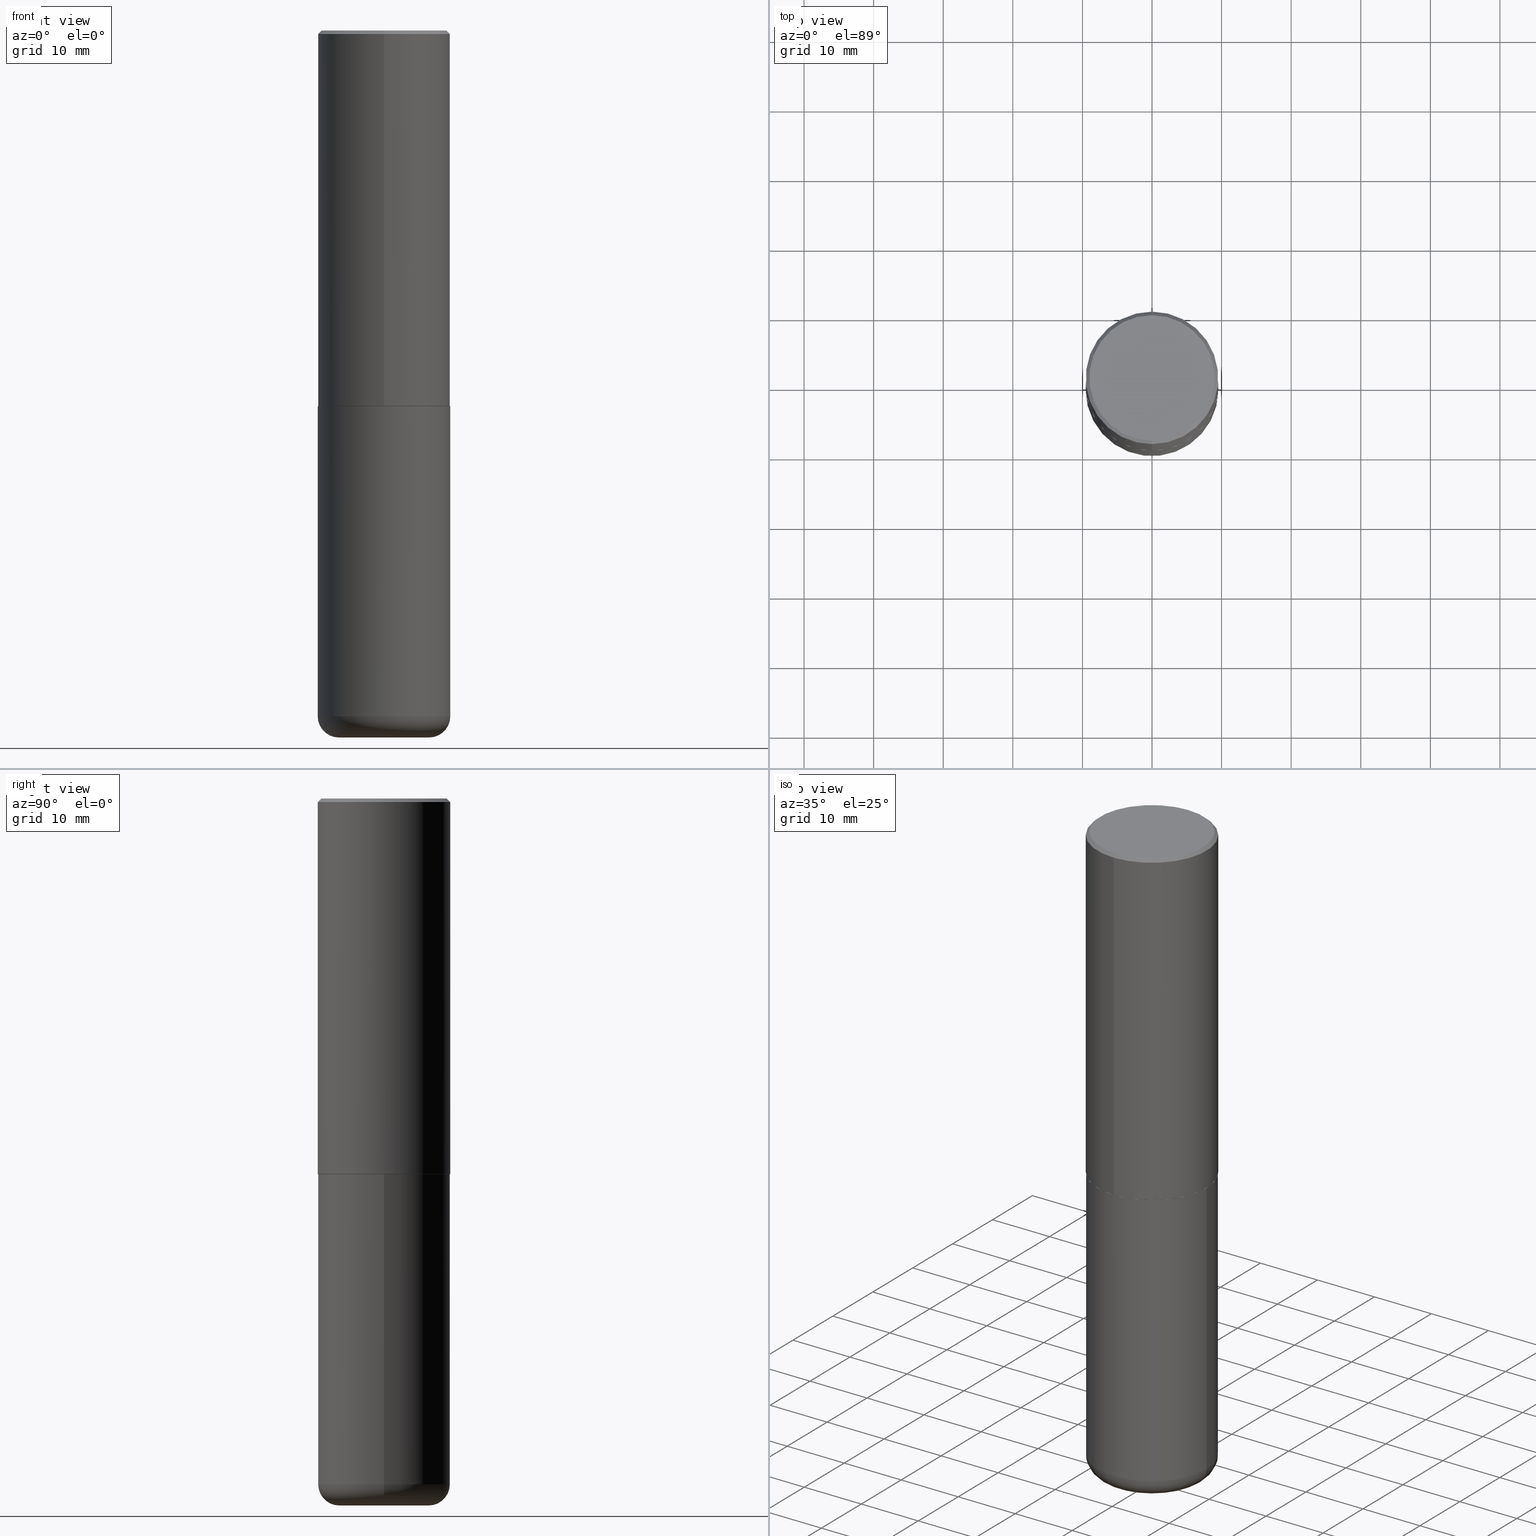
[diagram: canonical four-view strip — front | top / right | iso, engineering-drawing reading convention]
A machine part, canonical four-view strip (front | top / right | iso — engineering-drawing reading convention). The complete STEP part file that produces these views, byte-faithful:
ISO-10303-21;
HEADER;
FILE_DESCRIPTION (( 'STEP AP203' ),
    '1' );
FILE_NAME ('77256.STEP',
    '2024-03-06T16:41:11',
    ( '' ),
    ( '' ),
    'SwSTEP 2.0',
    'SolidWorks 2023',
    '' );
FILE_SCHEMA (( 'CONFIG_CONTROL_DESIGN' ));
ENDSEC;

DATA;
#1 = PLANE ( 'NONE',  #64 ) ;
#2 = EDGE_CURVE ( 'NONE', #69, #9, #322, .T. ) ;
#3 = EDGE_CURVE ( 'NONE', #370, #16, #353, .T. ) ;
#4 = PERSON_AND_ORGANIZATION_ROLE ( 'design_supplier' ) ;
#5 = LINE ( 'NONE', #82, #237 ) ;
#6 = CONICAL_SURFACE ( 'NONE', #17, 0.3739999999999999991, 0.7853981633975507526 ) ;
#7 = VECTOR ( 'NONE', #167, 39.37007874015748143 ) ;
#8 = CARTESIAN_POINT ( 'NONE',  ( 9.781875224740547508E-29, -1.396592535537258391E-14, -4.000000000000000888 ) ) ;
#9 = VERTEX_POINT ( 'NONE', #118 ) ;
#10 = ORIENTED_EDGE ( 'NONE', *, *, #218, .T. ) ;
#11 = ADVANCED_FACE ( 'NONE', ( #255 ), #6, .T. ) ;
#12 = ORIENTED_EDGE ( 'NONE', *, *, #378, .F. ) ;
#13 = AXIS2_PLACEMENT_3D ( 'NONE', #289, #185, #325 ) ;
#14 = ORIENTED_EDGE ( 'NONE', *, *, #178, .T. ) ;
#15 = CC_DESIGN_PERSON_AND_ORGANIZATION_ASSIGNMENT ( #311, #4, ( #158 ) ) ;
#16 = VERTEX_POINT ( 'NONE', #89 ) ;
#17 = AXIS2_PLACEMENT_3D ( 'NONE', #88, #214, #256 ) ;
#18 = AXIS2_PLACEMENT_3D ( 'NONE', #380, #58, #179 ) ;
#19 = CARTESIAN_POINT ( 'NONE',  ( 4.889199683026055945E-31, -6.985451491424065481E-17, -0.02000000000000008715 ) ) ;
#20 = ADVANCED_FACE ( 'NONE', ( #216 ), #236, .T. ) ;
#21 = APPROVAL_DATE_TIME ( #108, #27 ) ;
#22 = DIRECTION ( 'NONE',  ( -2.444599841513017620E-29, 3.492725745712017802E-15, 1.000000000000000000 ) ) ;
#23 = DIRECTION ( 'NONE',  ( -2.444599841513017620E-29, 3.492725745712017802E-15, 1.000000000000000000 ) ) ;
#24 = LOCAL_TIME ( 11, 41, 11.00000000000000000, #328 ) ;
#25 = ADVANCED_FACE ( 'NONE', ( #195 ), #274, .T. ) ;
#26 = FACE_OUTER_BOUND ( 'NONE', #112, .T. ) ;
#27 = APPROVAL ( #48, 'UNSPECIFIED' ) ;
#28 = LINE ( 'NONE', #147, #78 ) ;
#29 = DIRECTION ( 'NONE',  ( 2.438088387897960049E-29, -3.491481338843145188E-15, -1.000000000000000000 ) ) ;
#30 = APPROVAL_ROLE ( '' ) ;
#31 = CARTESIAN_POINT ( 'NONE',  ( 5.194774663215162724E-29, -7.422042209638035708E-15, -2.125000000000000000 ) ) ;
#32 = CONICAL_SURFACE ( 'NONE', #61, 0.3750000000000001110, 0.7853981633974477239 ) ;
#33 = ORGANIZATION ( 'UNSPECIFIED', 'UNSPECIFIED', '' ) ;
#34 = EDGE_CURVE ( 'NONE', #102, #16, #123, .T. ) ;
#35 = DIRECTION ( 'NONE',  ( -6.982962677686266711E-15, -1.000000000000000000, 3.492725745712018196E-15 ) ) ;
#36 = EDGE_CURVE ( 'NONE', #95, #150, #116, .T. ) ;
#37 = ORIENTED_EDGE ( 'NONE', *, *, #87, .F. ) ;
#38 = CC_DESIGN_PERSON_AND_ORGANIZATION_ASSIGNMENT ( #335, #171, ( #158 ) ) ;
#39 = ORIENTED_EDGE ( 'NONE', *, *, #341, .F. ) ;
#40 = ADVANCED_BREP_SHAPE_REPRESENTATION ( '77256', ( #81, #215, #208 ), #247 ) ;
#41 = ORIENTED_EDGE ( 'NONE', *, *, #135, .T. ) ;
#42 = AXIS2_PLACEMENT_3D ( 'NONE', #68, #324, #361 ) ;
#43 = AXIS2_PLACEMENT_3D ( 'NONE', #114, #379, #253 ) ;
#44 = ORIENTED_EDGE ( 'NONE', *, *, #268, .T. ) ;
#45 =( NAMED_UNIT ( * ) PLANE_ANGLE_UNIT ( ) SI_UNIT ( $, .RADIAN. ) );
#46 = ORIENTED_EDGE ( 'NONE', *, *, #2, .T. ) ;
#47 = CALENDAR_DATE ( 2024, 6, 3 ) ;
#48 = APPROVAL_STATUS ( 'not_yet_approved' ) ;
#49 = DIRECTION ( 'NONE',  ( -6.982962677686266711E-15, -1.000000000000000000, 3.491481338843145583E-15 ) ) ;
#50 = CIRCLE ( 'NONE', #390, 0.3750000000000001110 ) ;
#51 = AXIS2_PLACEMENT_3D ( 'NONE', #408, #282, #250 ) ;
#52 = CARTESIAN_POINT ( 'NONE',  ( 2.664535259100376880E-15, 0.3750000000000002220, -1.309772154642007612E-15 ) ) ;
#53 = DIRECTION ( 'NONE',  ( 1.000000000000000000, -6.982962677686265922E-15, 4.876176775795935793E-29 ) ) ;
#54 = DIRECTION ( 'NONE',  ( -2.444599841513017620E-29, 3.492725745712018196E-15, 1.000000000000000000 ) ) ;
#55 = DIRECTION ( 'NONE',  ( -2.444599841513017620E-29, 3.492725745712017802E-15, 1.000000000000000000 ) ) ;
#56 = CIRCLE ( 'NONE', #350, 0.3750000000000001110 ) ;
#57 = APPROVAL_PERSON_ORGANIZATION ( #368, #127, #30 ) ;
#58 = DIRECTION ( 'NONE',  ( -2.444599841513016780E-29, 3.492725745712018196E-15, 1.000000000000000000 ) ) ;
#59 = CARTESIAN_POINT ( 'NONE',  ( 9.488418967998330085E-29, -1.354694759471140570E-14, -3.880000000000000338 ) ) ;
#60 = LINE ( 'NONE', #212, #272 ) ;
#61 = AXIS2_PLACEMENT_3D ( 'NONE', #77, #204, #142 ) ;
#62 = CIRCLE ( 'NONE', #72, 0.3739999999999999991 ) ;
#63 = PERSON_AND_ORGANIZATION ( #290, #33 ) ;
#64 = AXIS2_PLACEMENT_3D ( 'NONE', #410, #90, #180 ) ;
#65 = VERTEX_POINT ( 'NONE', #109 ) ;
#66 = APPROVAL_ROLE ( '' ) ;
#67 = ORIENTED_EDGE ( 'NONE', *, *, #70, .T. ) ;
#68 = CARTESIAN_POINT ( 'NONE',  ( 4.889199683026055945E-31, -6.985451491424065481E-17, -0.02000000000000008715 ) ) ;
#69 = VERTEX_POINT ( 'NONE', #139 ) ;
#70 = EDGE_CURVE ( 'NONE', #302, #362, #56, .T. ) ;
#71 = EDGE_LOOP ( 'NONE', ( #243, #46, #330, #300 ) ) ;
#72 = AXIS2_PLACEMENT_3D ( 'NONE', #31, #346, #213 ) ;
#73 = ORIENTED_EDGE ( 'NONE', *, *, #173, .T. ) ;
#74 = DIRECTION ( 'NONE',  ( -6.982962677686266711E-15, -1.000000000000000000, 3.642463991552348591E-15 ) ) ;
#75 = EDGE_CURVE ( 'NONE', #362, #302, #50, .T. ) ;
#76 = DIRECTION ( 'NONE',  ( 1.000000000000000000, -6.982962677686265922E-15, 4.876176775795935793E-29 ) ) ;
#77 = CARTESIAN_POINT ( 'NONE',  ( 4.889199683026055945E-31, -6.985451491424065481E-17, -0.02000000000000008715 ) ) ;
#78 = VECTOR ( 'NONE', #115, 39.37007874015748143 ) ;
#79 = CIRCLE ( 'NONE', #111, 0.2550000000000000044 ) ;
#80 = DIRECTION ( 'NONE',  ( -6.982962677686265922E-15, -1.000000000000000000, 3.492725745712017407E-15 ) ) ;
#81 = MANIFOLD_SOLID_BREP ( 'Body-Move/Copy2[1]', #206 ) ;
#82 = CARTESIAN_POINT ( 'NONE',  ( -2.572686749164324336E-15, -0.3750000000000001665, -0.01999999999999877570 ) ) ;
#83 = APPROVAL ( #121, 'UNSPECIFIED' ) ;
#84 = CYLINDRICAL_SURFACE ( 'NONE', #226, 0.3750000000000002220 ) ;
#85 = AXIS2_PLACEMENT_3D ( 'NONE', #403, #244, #207 ) ;
#86 = DIRECTION ( 'NONE',  ( -2.445468806185136597E-29, 3.491481338843145583E-15, 1.000000000000000000 ) ) ;
#87 = EDGE_CURVE ( 'NONE', #150, #362, #409, .T. ) ;
#88 = CARTESIAN_POINT ( 'NONE',  ( 5.194774663215162724E-29, -7.422042209638035708E-15, -2.125000000000000000 ) ) ;
#89 = CARTESIAN_POINT ( 'NONE',  ( -0.3750000000000000555, -7.818637460776168963E-15, -2.125000000000000000 ) ) ;
#90 = DIRECTION ( 'NONE',  ( 2.438088387897960049E-29, -3.491481338843145188E-15, -1.000000000000000000 ) ) ;
#91 = CC_DESIGN_APPROVAL ( #83, ( #155 ) ) ;
#92 = ORIENTED_EDGE ( 'NONE', *, *, #3, .T. ) ;
#93 = COORDINATED_UNIVERSAL_TIME_OFFSET ( 5, 0, .BEHIND. ) ;
#94 = CC_DESIGN_PERSON_AND_ORGANIZATION_ASSIGNMENT ( #298, #262, ( #155 ) ) ;
#95 = VERTEX_POINT ( 'NONE', #369 ) ;
#96 = ADVANCED_FACE ( 'NONE', ( #371 ), #32, .T. ) ;
#97 = VERTEX_POINT ( 'NONE', #404 ) ;
#98 = DATE_TIME_ROLE ( 'classification_date' ) ;
#99 = ORIENTED_EDGE ( 'NONE', *, *, #280, .F. ) ;
#100 = DIRECTION ( 'NONE',  ( -6.982962677686265922E-15, -1.000000000000000000, 3.492725745712017407E-15 ) ) ;
#101 = PLANE ( 'NONE',  #383 ) ;
#102 = VERTEX_POINT ( 'NONE', #174 ) ;
#103 = COORDINATED_UNIVERSAL_TIME_OFFSET ( 5, 0, .BEHIND. ) ;
#104 = APPROVAL_PERSON_ORGANIZATION ( #388, #83, #66 ) ;
#105 = EDGE_CURVE ( 'NONE', #69, #370, #395, .T. ) ;
#106 = APPROVAL_ROLE ( '' ) ;
#107 = DIRECTION ( 'NONE',  ( -2.445468806185136597E-29, 3.491481338843145583E-15, 1.000000000000000000 ) ) ;
#108 = DATE_AND_TIME ( #233, #24 ) ;
#109 = CARTESIAN_POINT ( 'NONE',  ( 2.548781377355487507E-15, 0.3549999999999999822, -1.175448187937810043E-15 ) ) ;
#110 = EDGE_CURVE ( 'NONE', #97, #102, #28, .T. ) ;
#111 = AXIS2_PLACEMENT_3D ( 'NONE', #385, #86, #251 ) ;
#112 = EDGE_LOOP ( 'NONE', ( #393, #394 ) ) ;
#113 = PLANE ( 'NONE',  #309 ) ;
#114 = CARTESIAN_POINT ( 'NONE',  ( 5.194774663215162724E-29, -7.422042209638035708E-15, -2.125000000000000000 ) ) ;
#115 = DIRECTION ( 'NONE',  ( -2.445468806185136877E-29, 3.491481338843145188E-15, 1.000000000000000000 ) ) ;
#116 = CIRCLE ( 'NONE', #355, 0.3750000000000002776 ) ;
#117 = DIRECTION ( 'NONE',  ( 7.105427357601001859E-15, 1.000000000000000000, -3.491481338843145583E-15 ) ) ;
#118 = CARTESIAN_POINT ( 'NONE',  ( 0.2550000000000000044, -1.574658083818258381E-14, -4.000000000000000888 ) ) ;
#119 = FACE_OUTER_BOUND ( 'NONE', #391, .T. ) ;
#120 = EDGE_LOOP ( 'NONE', ( #194, #129 ) ) ;
#121 = APPROVAL_STATUS ( 'not_yet_approved' ) ;
#122 = EDGE_LOOP ( 'NONE', ( #232, #257 ) ) ;
#123 = CIRCLE ( 'NONE', #145, 0.3750000000000000555 ) ;
#124 = SECURITY_CLASSIFICATION ( '', '', #263 ) ;
#125 = ORIENTED_EDGE ( 'NONE', *, *, #352, .T. ) ;
#126 = LENGTH_MEASURE_WITH_UNIT ( LENGTH_MEASURE( 0.02539999999999999897 ), #363 );
#127 = APPROVAL ( #276, 'UNSPECIFIED' ) ;
#128 = EDGE_LOOP ( 'NONE', ( #191, #163, #360, #365 ) ) ;
#129 = ORIENTED_EDGE ( 'NONE', *, *, #173, .F. ) ;
#130 = ADVANCED_FACE ( 'NONE', ( #119 ), #84, .T. ) ;
#131 = CIRCLE ( 'NONE', #323, 0.1200000000000002176 ) ;
#132 = VERTEX_POINT ( 'NONE', #254 ) ;
#133 = ORIENTED_EDGE ( 'NONE', *, *, #347, .T. ) ;
#134 = FACE_OUTER_BOUND ( 'NONE', #122, .T. ) ;
#135 = EDGE_CURVE ( 'NONE', #9, #69, #79, .T. ) ;
#136 = ORIENTED_EDGE ( 'NONE', *, *, #70, .F. ) ;
#137 = AXIS2_PLACEMENT_3D ( 'NONE', #418, #348, #320 ) ;
#138 = DIRECTION ( 'NONE',  ( 0.000000000000000000, 0.000000000000000000, 1.000000000000000000 ) ) ;
#139 = CARTESIAN_POINT ( 'NONE',  ( -0.2550000000000000044, -1.151822685739767881E-14, -4.000000000000000888 ) ) ;
#140 = DIRECTION ( 'NONE',  ( 2.444599841513016780E-29, -3.492725745712018196E-15, -1.000000000000000000 ) ) ;
#141 = CARTESIAN_POINT ( 'NONE',  ( -0.3750000000000001110, -1.088241233561102684E-14, -3.880000000000000338 ) ) ;
#142 = DIRECTION ( 'NONE',  ( 6.982962677686265922E-15, 1.000000000000000000, -3.494488891895535640E-15 ) ) ;
#143 = PERSON_AND_ORGANIZATION ( #290, #33 ) ;
#144 = EDGE_CURVE ( 'NONE', #132, #160, #62, .T. ) ;
#145 = AXIS2_PLACEMENT_3D ( 'NONE', #374, #246, #343 ) ;
#146 = DIRECTION ( 'NONE',  ( -6.982962677686265922E-15, -1.000000000000000000, 3.494488891895535640E-15 ) ) ;
#147 = CARTESIAN_POINT ( 'NONE',  ( 0.3750000000000000555, -2.618611004132350016E-15, 1.828566290923476203E-29 ) ) ;
#148 = EDGE_LOOP ( 'NONE', ( #225, #73, #261, #342 ) ) ;
#149 = CARTESIAN_POINT ( 'NONE',  ( 0.000000000000000000, 0.000000000000000000, 0.000000000000000000 ) ) ;
#150 = VERTEX_POINT ( 'NONE', #153 ) ;
#151 = DIRECTION ( 'NONE',  ( -1.000000000000000000, 6.982962677686265922E-15, -4.876176775795935793E-29 ) ) ;
#152 = PRODUCT_RELATED_PRODUCT_CATEGORY ( 'detail', '', ( #245 ) ) ;
#153 = CARTESIAN_POINT ( 'NONE',  ( 2.664535259100402913E-15, 0.3749999999999928391, -2.124000000000000998 ) ) ;
#154 = VECTOR ( 'NONE', #54, 39.37007874015748143 ) ;
#155 = PRODUCT_DEFINITION ( 'UNKNOWN', '', #158, #228 ) ;
#156 = CARTESIAN_POINT ( 'NONE',  ( 2.657429831742826359E-15, 0.3739999999999925606, -2.125000000000001332 ) ) ;
#157 = EDGE_LOOP ( 'NONE', ( #10, #92, #199, #327 ) ) ;
#158 = PRODUCT_DEFINITION_FORMATION_WITH_SPECIFIED_SOURCE ( 'ANY', '', #245, .NOT_KNOWN. ) ;
#159 = ORIENTED_EDGE ( 'NONE', *, *, #87, .T. ) ;
#160 = VERTEX_POINT ( 'NONE', #182 ) ;
#161 = DATE_TIME_ROLE ( 'creation_date' ) ;
#162 = CIRCLE ( 'NONE', #85, 0.3750000000000000555 ) ;
#163 = ORIENTED_EDGE ( 'NONE', *, *, #205, .T. ) ;
#164 = ORIENTED_EDGE ( 'NONE', *, *, #411, .T. ) ;
#165 = FACE_OUTER_BOUND ( 'NONE', #128, .T. ) ;
#166 = APPROVAL_DATE_TIME ( #286, #127 ) ;
#167 = DIRECTION ( 'NONE',  ( 5.024295867788576727E-15, 0.7071067811866224018, 0.7071067811864726327 ) ) ;
#168 = LINE ( 'NONE', #375, #154 ) ;
#169 = CIRCLE ( 'NONE', #137, 0.3739999999999999991 ) ;
#170 = MECHANICAL_CONTEXT ( 'NONE', #230, 'mechanical' ) ;
#171 = PERSON_AND_ORGANIZATION_ROLE ( 'creator' ) ;
#172 = DIRECTION ( 'NONE',  ( -2.445468806185136597E-29, 3.491481338843145583E-15, 1.000000000000000000 ) ) ;
#173 = EDGE_CURVE ( 'NONE', #160, #132, #169, .T. ) ;
#174 = CARTESIAN_POINT ( 'NONE',  ( 0.3750000000000000555, -1.003800884917403364E-14, -2.125000000000000000 ) ) ;
#175 = DIMENSIONAL_EXPONENTS ( 1.000000000000000000, 0.000000000000000000, 0.000000000000000000, 0.000000000000000000, 0.000000000000000000, 0.000000000000000000, 0.000000000000000000 ) ;
#176 = LOCAL_TIME ( 11, 41, 11.00000000000000000, #93 ) ;
#177 = DIRECTION ( 'NONE',  ( -4.851104656540961119E-15, -0.7071067811865495711, -0.7071067811865454633 ) ) ;
#178 = EDGE_CURVE ( 'NONE', #65, #362, #60, .T. ) ;
#179 = DIRECTION ( 'NONE',  ( -6.982962677686265922E-15, -1.000000000000000000, 3.492725745712018196E-15 ) ) ;
#180 = DIRECTION ( 'NONE',  ( -1.000000000000000000, 6.982962677686265922E-15, -4.876176775795935793E-29 ) ) ;
#181 = CC_DESIGN_DATE_AND_TIME_ASSIGNMENT ( #222, #161, ( #155 ) ) ;
#182 = CARTESIAN_POINT ( 'NONE',  ( 2.660982545421628047E-15, 0.3739999999999925606, -2.125000000000001332 ) ) ;
#183 = AXIS2_PLACEMENT_3D ( 'NONE', #209, #406, #279 ) ;
#184 = ADVANCED_FACE ( 'NONE', ( #412 ), #288, .F. ) ;
#185 = DIRECTION ( 'NONE',  ( -2.445468806185136597E-29, 3.491481338843145583E-15, 1.000000000000000000 ) ) ;
#186 = PERSON_AND_ORGANIZATION_ROLE ( 'classification_officer' ) ;
#187 = AXIS2_PLACEMENT_3D ( 'NONE', #241, #336, #80 ) ;
#188 = CALENDAR_DATE ( 2024, 6, 3 ) ;
#189 = ORIENTED_EDGE ( 'NONE', *, *, #75, .F. ) ;
#190 = CYLINDRICAL_SURFACE ( 'NONE', #252, 0.3750000000000002220 ) ;
#191 = ORIENTED_EDGE ( 'NONE', *, *, #3, .F. ) ;
#192 = CC_DESIGN_PERSON_AND_ORGANIZATION_ASSIGNMENT ( #143, #248, ( #245 ) ) ;
#193 = SHAPE_DEFINITION_REPRESENTATION ( #203, #40 ) ;
#194 = ORIENTED_EDGE ( 'NONE', *, *, #144, .F. ) ;
#195 = FACE_OUTER_BOUND ( 'NONE', #157, .T. ) ;
#196 = CARTESIAN_POINT ( 'NONE',  ( -2.572686749164324336E-15, -0.3750000000000001665, -0.01999999999999877570 ) ) ;
#197 = LOCAL_TIME ( 11, 41, 11.00000000000000000, #103 ) ;
#198 = EDGE_LOOP ( 'NONE', ( #258, #164 ) ) ;
#199 = ORIENTED_EDGE ( 'NONE', *, *, #34, .F. ) ;
#200 = COORDINATED_UNIVERSAL_TIME_OFFSET ( 5, 0, .BEHIND. ) ;
#201 = DIRECTION ( 'NONE',  ( -6.982962677686265922E-15, -1.000000000000000000, 3.494488891895535640E-15 ) ) ;
#202 = APPLICATION_PROTOCOL_DEFINITION ( 'international standard', 'config_control_design', 1994, #230 ) ;
#203 = PRODUCT_DEFINITION_SHAPE ( 'NONE', 'NONE',  #155 ) ;
#204 = DIRECTION ( 'NONE',  ( 2.444599841513017620E-29, -3.492725745712017802E-15, -1.000000000000000000 ) ) ;
#205 = EDGE_CURVE ( 'NONE', #370, #97, #329, .T. ) ;
#206 = CLOSED_SHELL ( 'NONE', ( #25, #223, #316, #210, #357, #331 ) ) ;
#207 = DIRECTION ( 'NONE',  ( 1.000000000000000000, -6.982962677686266711E-15, 0.000000000000000000 ) ) ;
#208 = AXIS2_PLACEMENT_3D ( 'NONE', #304, #138, #314 ) ;
#209 = CARTESIAN_POINT ( 'NONE',  ( 5.192330063373648592E-29, -7.418549483892325607E-15, -2.123999999999999666 ) ) ;
#210 = ADVANCED_FACE ( 'NONE', ( #165 ), #273, .T. ) ;
#211 = CC_DESIGN_SECURITY_CLASSIFICATION ( #124, ( #158 ) ) ;
#212 = CARTESIAN_POINT ( 'NONE',  ( 2.618611004132351200E-15, 0.3750000000000000555, -0.02000000000000139513 ) ) ;
#213 = DIRECTION ( 'NONE',  ( -6.982962677686266711E-15, -1.000000000000000000, 3.652203200085913145E-15 ) ) ;
#214 = DIRECTION ( 'NONE',  ( -2.444599841513017620E-29, 3.492725745712017802E-15, 1.000000000000000000 ) ) ;
#215 = MANIFOLD_SOLID_BREP ( 'Body-Move/Copy2[2]', #344 ) ;
#216 = FACE_OUTER_BOUND ( 'NONE', #354, .T. ) ;
#217 = DIRECTION ( 'NONE',  ( -2.445468806185136597E-29, 3.491481338843145583E-15, 1.000000000000000000 ) ) ;
#218 = EDGE_CURVE ( 'NONE', #97, #370, #162, .T. ) ;
#219 = CIRCLE ( 'NONE', #259, 0.3549999999999999822 ) ;
#220 = ORIENTED_EDGE ( 'NONE', *, *, #36, .F. ) ;
#221 = DIRECTION ( 'NONE',  ( 1.000000000000000000, -6.982962677686267499E-15, 0.000000000000000000 ) ) ;
#222 = DATE_AND_TIME ( #366, #197 ) ;
#223 = ADVANCED_FACE ( 'NONE', ( #339 ), #301, .T. ) ;
#224 = CARTESIAN_POINT ( 'NONE',  ( -2.611628041454611937E-15, -0.3740000000000074931, -2.124999999999998668 ) ) ;
#225 = ORIENTED_EDGE ( 'NONE', *, *, #268, .F. ) ;
#226 = AXIS2_PLACEMENT_3D ( 'NONE', #149, #285, #414 ) ;
#227 = ADVANCED_FACE ( 'NONE', ( #313 ), #190, .T. ) ;
#228 = DESIGN_CONTEXT ( 'detailed design', #381, 'design' ) ;
#229 = EDGE_LOOP ( 'NONE', ( #332, #44, #220, #39 ) ) ;
#230 = APPLICATION_CONTEXT ( 'configuration controlled 3d designs of mechanical parts and assemblies' ) ;
#231 = CARTESIAN_POINT ( 'NONE',  ( 0.2550000000000000044, -1.532760307752140402E-14, -3.880000000000000338 ) ) ;
#232 = ORIENTED_EDGE ( 'NONE', *, *, #287, .T. ) ;
#233 = CALENDAR_DATE ( 2024, 6, 3 ) ;
#234 = ORIENTED_EDGE ( 'NONE', *, *, #275, .F. ) ;
#235 = DIRECTION ( 'NONE',  ( 1.000000000000000000, -6.982962677686266711E-15, 0.000000000000000000 ) ) ;
#236 = CONICAL_SURFACE ( 'NONE', #42, 0.3750000000000001110, 0.7853981633974477239 ) ;
#237 = VECTOR ( 'NONE', #177, 39.37007874015748143 ) ;
#238 = ORIENTED_EDGE ( 'NONE', *, *, #75, .T. ) ;
#239 = DIRECTION ( 'NONE',  ( -2.445468806185136597E-29, 3.491481338843145583E-15, 1.000000000000000000 ) ) ;
#240 = CARTESIAN_POINT ( 'NONE',  ( 4.889199683026055945E-31, -6.985451491424065481E-17, -0.02000000000000008715 ) ) ;
#241 = CARTESIAN_POINT ( 'NONE',  ( -1.576020116281570290E-45, 2.251741140787182714E-31, 6.446945178995578068E-17 ) ) ;
#242 =( NAMED_UNIT ( * ) SI_UNIT ( $, .STERADIAN. ) SOLID_ANGLE_UNIT ( ) );
#243 = ORIENTED_EDGE ( 'NONE', *, *, #105, .F. ) ;
#244 = DIRECTION ( 'NONE',  ( -2.445468806185136597E-29, 3.491481338843145583E-15, 1.000000000000000000 ) ) ;
#245 = PRODUCT ( '77256', '77256', '', ( #170 ) ) ;
#246 = DIRECTION ( 'NONE',  ( -2.445468806185136597E-29, 3.491481338843145583E-15, 1.000000000000000000 ) ) ;
#247 =( GEOMETRIC_REPRESENTATION_CONTEXT ( 3 ) GLOBAL_UNCERTAINTY_ASSIGNED_CONTEXT ( ( #326 ) ) GLOBAL_UNIT_ASSIGNED_CONTEXT ( ( #358, #45, #242 ) ) REPRESENTATION_CONTEXT ( 'NONE', 'WORKASPACE' ) );
#248 = PERSON_AND_ORGANIZATION_ROLE ( 'design_owner' ) ;
#249 = COORDINATED_UNIVERSAL_TIME_OFFSET ( 5, 0, .BEHIND. ) ;
#250 = DIRECTION ( 'NONE',  ( 1.000000000000000000, -6.982962677686263555E-15, 4.883557194083111219E-29 ) ) ;
#251 = DIRECTION ( 'NONE',  ( 1.000000000000000000, -6.982962677686267499E-15, 0.000000000000000000 ) ) ;
#252 = AXIS2_PLACEMENT_3D ( 'NONE', #299, #306, #35 ) ;
#253 = DIRECTION ( 'NONE',  ( -6.982962677686266711E-15, -1.000000000000000000, 3.652203200085913145E-15 ) ) ;
#254 = CARTESIAN_POINT ( 'NONE',  ( -2.611628041454611937E-15, -0.3740000000000074931, -2.124999999999998668 ) ) ;
#255 = FACE_OUTER_BOUND ( 'NONE', #148, .T. ) ;
#256 = DIRECTION ( 'NONE',  ( -6.982962677686266711E-15, -1.000000000000000000, 3.652203200085913145E-15 ) ) ;
#257 = ORIENTED_EDGE ( 'NONE', *, *, #378, .T. ) ;
#258 = ORIENTED_EDGE ( 'NONE', *, *, #34, .T. ) ;
#259 = AXIS2_PLACEMENT_3D ( 'NONE', #405, #22, #100 ) ;
#260 = DIRECTION ( 'NONE',  ( -2.445468806185136877E-29, 3.491481338843145188E-15, 1.000000000000000000 ) ) ;
#261 = ORIENTED_EDGE ( 'NONE', *, *, #341, .T. ) ;
#262 = PERSON_AND_ORGANIZATION_ROLE ( 'creator' ) ;
#263 = SECURITY_CLASSIFICATION_LEVEL ( 'unclassified' ) ;
#264 = EDGE_LOOP ( 'NONE', ( #41, #270, #359, #234 ) ) ;
#265 = LOCAL_TIME ( 11, 41, 11.00000000000000000, #249 ) ;
#266 = LINE ( 'NONE', #224, #396 ) ;
#267 = ORIENTED_EDGE ( 'NONE', *, *, #352, .F. ) ;
#268 = EDGE_CURVE ( 'NONE', #160, #150, #295, .T. ) ;
#269 = ORIENTED_EDGE ( 'NONE', *, *, #178, .F. ) ;
#270 = ORIENTED_EDGE ( 'NONE', *, *, #105, .T. ) ;
#271 = CARTESIAN_POINT ( 'NONE',  ( 2.478951750578624209E-15, 0.3549999999999999822, -1.207682913832788389E-15 ) ) ;
#272 = VECTOR ( 'NONE', #284, 39.37007874015748143 ) ;
#273 = CYLINDRICAL_SURFACE ( 'NONE', #364, 0.3750000000000000555 ) ;
#274 = CYLINDRICAL_SURFACE ( 'NONE', #307, 0.3750000000000000555 ) ;
#275 = EDGE_CURVE ( 'NONE', #9, #97, #131, .T. ) ;
#276 = APPROVAL_STATUS ( 'not_yet_approved' ) ;
#277 = CALENDAR_DATE ( 2024, 6, 3 ) ;
#278 = CARTESIAN_POINT ( 'NONE',  ( -0.2550000000000000044, -1.173506361852314940E-14, -3.880000000000000338 ) ) ;
#279 = DIRECTION ( 'NONE',  ( -6.982962677686266711E-15, -1.000000000000000000, 3.642463991552348591E-15 ) ) ;
#280 = EDGE_CURVE ( 'NONE', #397, #302, #5, .T. ) ;
#281 = CARTESIAN_POINT ( 'NONE',  ( 2.618611004132351200E-15, 0.3750000000000000555, -0.02000000000000139513 ) ) ;
#282 = DIRECTION ( 'NONE',  ( -2.445468806185136597E-29, 3.491481338843145583E-15, 1.000000000000000000 ) ) ;
#283 = FACE_OUTER_BOUND ( 'NONE', #229, .T. ) ;
#284 = DIRECTION ( 'NONE',  ( 4.937700262164544887E-15, 0.7071067811865446862, -0.7071067811865503483 ) ) ;
#285 = DIRECTION ( 'NONE',  ( -2.444599841513017620E-29, 3.492725745712017802E-15, 1.000000000000000000 ) ) ;
#286 = DATE_AND_TIME ( #47, #294 ) ;
#287 = EDGE_CURVE ( 'NONE', #65, #397, #384, .T. ) ;
#288 = PLANE ( 'NONE',  #18 ) ;
#289 = CARTESIAN_POINT ( 'NONE',  ( 5.196621213143415268E-29, -7.419397845041683624E-15, -2.125000000000000000 ) ) ;
#290 = PERSON ( 'UNSPECIFIED', 'UNSPECIFIED', 'UNSPECIFIED', ('UNSPECIFIED'), ('UNSPECIFIED'), ('UNSPECIFIED') ) ;
#291 = CARTESIAN_POINT ( 'NONE',  ( 9.488418967998330085E-29, -1.354694759471140570E-14, -3.880000000000000338 ) ) ;
#292 = DIRECTION ( 'NONE',  ( 1.000000000000000000, -6.982962677686272233E-15, 0.000000000000000000 ) ) ;
#293 = VECTOR ( 'NONE', #333, 39.37007874015748143 ) ;
#294 = LOCAL_TIME ( 11, 41, 11.00000000000000000, #200 ) ;
#295 = LINE ( 'NONE', #156, #7 ) ;
#296 = DATE_AND_TIME ( #188, #176 ) ;
#297 = EDGE_LOOP ( 'NONE', ( #99, #387, #14, #238 ) ) ;
#298 = PERSON_AND_ORGANIZATION ( #290, #33 ) ;
#299 = CARTESIAN_POINT ( 'NONE',  ( 0.000000000000000000, 0.000000000000000000, 0.000000000000000000 ) ) ;
#300 = ORIENTED_EDGE ( 'NONE', *, *, #205, .F. ) ;
#301 = TOROIDAL_SURFACE ( 'NONE', #351, 0.2550000000000000044, 0.1200000000000001898 ) ;
#302 = VERTEX_POINT ( 'NONE', #196 ) ;
#303 = ADVANCED_FACE ( 'NONE', ( #134 ), #101, .F. ) ;
#304 = CARTESIAN_POINT ( 'NONE',  ( 0.000000000000000000, 0.000000000000000000, 0.000000000000000000 ) ) ;
#305 = DIRECTION ( 'NONE',  ( -2.444599841513017620E-29, 3.492725745712017802E-15, 1.000000000000000000 ) ) ;
#306 = DIRECTION ( 'NONE',  ( -2.444599841513017620E-29, 3.492725745712017802E-15, 1.000000000000000000 ) ) ;
#307 = AXIS2_PLACEMENT_3D ( 'NONE', #312, #107, #53 ) ;
#308 = FACE_OUTER_BOUND ( 'NONE', #71, .T. ) ;
#309 = AXIS2_PLACEMENT_3D ( 'NONE', #376, #29, #151 ) ;
#310 = APPROVAL_DATE_TIME ( #315, #83 ) ;
#311 = PERSON_AND_ORGANIZATION ( #290, #33 ) ;
#312 = CARTESIAN_POINT ( 'NONE',  ( 0.000000000000000000, 0.000000000000000000, 0.000000000000000000 ) ) ;
#313 = FACE_OUTER_BOUND ( 'NONE', #399, .T. ) ;
#314 = DIRECTION ( 'NONE',  ( 1.000000000000000000, 0.000000000000000000, 0.000000000000000000 ) ) ;
#315 = DATE_AND_TIME ( #277, #265 ) ;
#316 = ADVANCED_FACE ( 'NONE', ( #317 ), #1, .F. ) ;
#317 = FACE_OUTER_BOUND ( 'NONE', #198, .T. ) ;
#318 = CC_DESIGN_APPROVAL ( #27, ( #158 ) ) ;
#319 = DIRECTION ( 'NONE',  ( -1.000000000000000000, 7.105427357600994759E-15, 0.000000000000000000 ) ) ;
#320 = DIRECTION ( 'NONE',  ( -6.982962677686266711E-15, -1.000000000000000000, 3.652203200085913145E-15 ) ) ;
#321 = AXIS2_PLACEMENT_3D ( 'NONE', #291, #239, #235 ) ;
#322 = CIRCLE ( 'NONE', #416, 0.2550000000000000044 ) ;
#323 = AXIS2_PLACEMENT_3D ( 'NONE', #231, #49, #292 ) ;
#324 = DIRECTION ( 'NONE',  ( 2.444599841513017620E-29, -3.492725745712017802E-15, -1.000000000000000000 ) ) ;
#325 = DIRECTION ( 'NONE',  ( 1.000000000000000000, -6.982962677686266711E-15, 0.000000000000000000 ) ) ;
#326 = UNCERTAINTY_MEASURE_WITH_UNIT (LENGTH_MEASURE( 1.000000000000000082E-05 ), #358, 'distance_accuracy_value', 'NONE');
#327 = ORIENTED_EDGE ( 'NONE', *, *, #110, .F. ) ;
#328 = COORDINATED_UNIVERSAL_TIME_OFFSET ( 5, 0, .BEHIND. ) ;
#329 = CIRCLE ( 'NONE', #321, 0.3750000000000000555 ) ;
#330 = ORIENTED_EDGE ( 'NONE', *, *, #275, .T. ) ;
#331 = ADVANCED_FACE ( 'NONE', ( #26 ), #113, .T. ) ;
#332 = ORIENTED_EDGE ( 'NONE', *, *, #144, .T. ) ;
#333 = DIRECTION ( 'NONE',  ( -2.444599841513017620E-29, 3.492725745712018196E-15, 1.000000000000000000 ) ) ;
#334 = DIRECTION ( 'NONE',  ( -4.937700262165053702E-15, -0.7071067811866175168, 0.7071067811864775177 ) ) ;
#335 = PERSON_AND_ORGANIZATION ( #290, #33 ) ;
#336 = DIRECTION ( 'NONE',  ( -2.444599841513017620E-29, 3.492725745712017802E-15, 1.000000000000000000 ) ) ;
#337 = CIRCLE ( 'NONE', #183, 0.3750000000000002776 ) ;
#338 = DIRECTION ( 'NONE',  ( 6.982962677686265922E-15, 1.000000000000000000, -3.492725745712018196E-15 ) ) ;
#339 = FACE_OUTER_BOUND ( 'NONE', #264, .T. ) ;
#340 = APPLICATION_PROTOCOL_DEFINITION ( 'international standard', 'config_control_design', 1994, #381 ) ;
#341 = EDGE_CURVE ( 'NONE', #132, #95, #266, .T. ) ;
#342 = ORIENTED_EDGE ( 'NONE', *, *, #347, .F. ) ;
#343 = DIRECTION ( 'NONE',  ( 1.000000000000000000, -6.982962677686266711E-15, 0.000000000000000000 ) ) ;
#344 = CLOSED_SHELL ( 'NONE', ( #389, #130, #20, #96, #227, #11, #184, #303 ) ) ;
#345 = APPROVAL_PERSON_ORGANIZATION ( #402, #27, #106 ) ;
#346 = DIRECTION ( 'NONE',  ( -2.444599841513017620E-29, 3.492725745712017802E-15, 1.000000000000000000 ) ) ;
#347 = EDGE_CURVE ( 'NONE', #150, #95, #337, .T. ) ;
#348 = DIRECTION ( 'NONE',  ( -2.444599841513017620E-29, 3.492725745712017802E-15, 1.000000000000000000 ) ) ;
#349 = ORIENTED_EDGE ( 'NONE', *, *, #280, .T. ) ;
#350 = AXIS2_PLACEMENT_3D ( 'NONE', #19, #23, #146 ) ;
#351 = AXIS2_PLACEMENT_3D ( 'NONE', #59, #217, #377 ) ;
#352 = EDGE_CURVE ( 'NONE', #95, #302, #168, .T. ) ;
#353 = LINE ( 'NONE', #415, #382 ) ;
#354 = EDGE_LOOP ( 'NONE', ( #12, #349, #67, #269 ) ) ;
#355 = AXIS2_PLACEMENT_3D ( 'NONE', #367, #55, #74 ) ;
#356 = CIRCLE ( 'NONE', #13, 0.3750000000000000555 ) ;
#357 = ADVANCED_FACE ( 'NONE', ( #308 ), #407, .T. ) ;
#358 =( CONVERSION_BASED_UNIT ( 'INCH', #126 ) LENGTH_UNIT ( ) NAMED_UNIT ( #175 ) );
#359 = ORIENTED_EDGE ( 'NONE', *, *, #218, .F. ) ;
#360 = ORIENTED_EDGE ( 'NONE', *, *, #110, .T. ) ;
#361 = DIRECTION ( 'NONE',  ( 6.982962677686265922E-15, 1.000000000000000000, -3.494488891895535640E-15 ) ) ;
#362 = VERTEX_POINT ( 'NONE', #281 ) ;
#363 =( LENGTH_UNIT ( ) NAMED_UNIT ( * ) SI_UNIT ( $, .METRE. ) );
#364 = AXIS2_PLACEMENT_3D ( 'NONE', #401, #172, #76 ) ;
#365 = ORIENTED_EDGE ( 'NONE', *, *, #411, .F. ) ;
#366 = CALENDAR_DATE ( 2024, 6, 3 ) ;
#367 = CARTESIAN_POINT ( 'NONE',  ( 5.192330063373648592E-29, -7.418549483892325607E-15, -2.123999999999999666 ) ) ;
#368 = PERSON_AND_ORGANIZATION ( #290, #33 ) ;
#369 = CARTESIAN_POINT ( 'NONE',  ( -2.618611004132299924E-15, -0.3750000000000077716, -2.123999999999998334 ) ) ;
#370 = VERTEX_POINT ( 'NONE', #141 ) ;
#371 = FACE_OUTER_BOUND ( 'NONE', #297, .T. ) ;
#372 = AXIS2_PLACEMENT_3D ( 'NONE', #278, #117, #319 ) ;
#373 = CONICAL_SURFACE ( 'NONE', #43, 0.3739999999999999991, 0.7853981633975507526 ) ;
#374 = CARTESIAN_POINT ( 'NONE',  ( 5.196621213143415268E-29, -7.419397845041683624E-15, -2.125000000000000000 ) ) ;
#375 = CARTESIAN_POINT ( 'NONE',  ( -2.618611004132351594E-15, -0.3750000000000002220, 1.309772154642007612E-15 ) ) ;
#376 = CARTESIAN_POINT ( 'NONE',  ( 3.797124611134382385E-29, -2.253642886490752288E-14, -4.000000000000000000 ) ) ;
#377 = DIRECTION ( 'NONE',  ( 1.000000000000000000, -6.982962677686263555E-15, 4.883557194083111219E-29 ) ) ;
#378 = EDGE_CURVE ( 'NONE', #397, #65, #219, .T. ) ;
#379 = DIRECTION ( 'NONE',  ( -2.444599841513017620E-29, 3.492725745712017802E-15, 1.000000000000000000 ) ) ;
#380 = CARTESIAN_POINT ( 'NONE',  ( 5.194774663215162724E-29, -7.422042209638035708E-15, -2.125000000000000000 ) ) ;
#381 = APPLICATION_CONTEXT ( 'configuration controlled 3d designs of mechanical parts and assemblies' ) ;
#382 = VECTOR ( 'NONE', #260, 39.37007874015748143 ) ;
#383 = AXIS2_PLACEMENT_3D ( 'NONE', #271, #140, #338 ) ;
#384 = CIRCLE ( 'NONE', #187, 0.3549999999999999822 ) ;
#385 = CARTESIAN_POINT ( 'NONE',  ( 9.781875224740547508E-29, -1.396592535537258391E-14, -4.000000000000000888 ) ) ;
#386 = CC_DESIGN_DATE_AND_TIME_ASSIGNMENT ( #296, #98, ( #124 ) ) ;
#387 = ORIENTED_EDGE ( 'NONE', *, *, #287, .F. ) ;
#388 = PERSON_AND_ORGANIZATION ( #290, #33 ) ;
#389 = ADVANCED_FACE ( 'NONE', ( #283 ), #373, .T. ) ;
#390 = AXIS2_PLACEMENT_3D ( 'NONE', #240, #305, #201 ) ;
#391 = EDGE_LOOP ( 'NONE', ( #398, #159, #136, #267 ) ) ;
#392 = DIRECTION ( 'NONE',  ( -2.445468806185136597E-29, 3.491481338843145583E-15, 1.000000000000000000 ) ) ;
#393 = ORIENTED_EDGE ( 'NONE', *, *, #135, .F. ) ;
#394 = ORIENTED_EDGE ( 'NONE', *, *, #2, .F. ) ;
#395 = CIRCLE ( 'NONE', #372, 0.1200000000000002176 ) ;
#396 = VECTOR ( 'NONE', #334, 39.37007874015748143 ) ;
#397 = VERTEX_POINT ( 'NONE', #417 ) ;
#398 = ORIENTED_EDGE ( 'NONE', *, *, #36, .T. ) ;
#399 = EDGE_LOOP ( 'NONE', ( #37, #133, #125, #189 ) ) ;
#400 = CC_DESIGN_APPROVAL ( #127, ( #124 ) ) ;
#401 = CARTESIAN_POINT ( 'NONE',  ( 0.000000000000000000, 0.000000000000000000, 0.000000000000000000 ) ) ;
#402 = PERSON_AND_ORGANIZATION ( #290, #33 ) ;
#403 = CARTESIAN_POINT ( 'NONE',  ( 9.488418967998330085E-29, -1.354694759471140570E-14, -3.880000000000000338 ) ) ;
#404 = CARTESIAN_POINT ( 'NONE',  ( 0.3750000000000001110, -1.616555859884375729E-14, -3.880000000000000338 ) ) ;
#405 = CARTESIAN_POINT ( 'NONE',  ( -1.576020116281570290E-45, 2.251741140787182714E-31, 6.446945178995578068E-17 ) ) ;
#406 = DIRECTION ( 'NONE',  ( -2.444599841513017620E-29, 3.492725745712017802E-15, 1.000000000000000000 ) ) ;
#407 = TOROIDAL_SURFACE ( 'NONE', #51, 0.2550000000000000044, 0.1200000000000001898 ) ;
#408 = CARTESIAN_POINT ( 'NONE',  ( 9.488418967998330085E-29, -1.354694759471140570E-14, -3.880000000000000338 ) ) ;
#409 = LINE ( 'NONE', #52, #293 ) ;
#410 = CARTESIAN_POINT ( 'NONE',  ( 5.196621213143415268E-29, -7.419397845041683624E-15, -2.125000000000000000 ) ) ;
#411 = EDGE_CURVE ( 'NONE', #16, #102, #356, .T. ) ;
#412 = FACE_OUTER_BOUND ( 'NONE', #120, .T. ) ;
#413 = CC_DESIGN_PERSON_AND_ORGANIZATION_ASSIGNMENT ( #63, #186, ( #124 ) ) ;
#414 = DIRECTION ( 'NONE',  ( -6.982962677686266711E-15, -1.000000000000000000, 3.492725745712018196E-15 ) ) ;
#415 = CARTESIAN_POINT ( 'NONE',  ( -0.3750000000000000555, 2.664535259100376091E-15, -1.844600658845589598E-29 ) ) ;
#416 = AXIS2_PLACEMENT_3D ( 'NONE', #8, #392, #221 ) ;
#417 = CARTESIAN_POINT ( 'NONE',  ( -2.504081769186608610E-15, -0.3549999999999999822, 1.304387091517721851E-15 ) ) ;
#418 = CARTESIAN_POINT ( 'NONE',  ( 5.194774663215162724E-29, -7.422042209638035708E-15, -2.125000000000000000 ) ) ;
ENDSEC;
END-ISO-10303-21;
